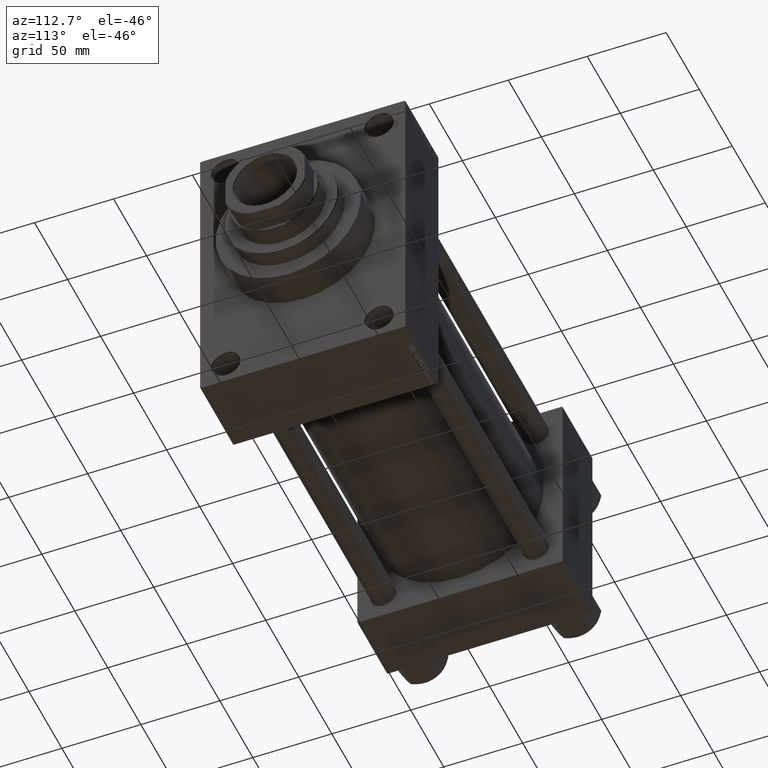
[diagram: clean part render]
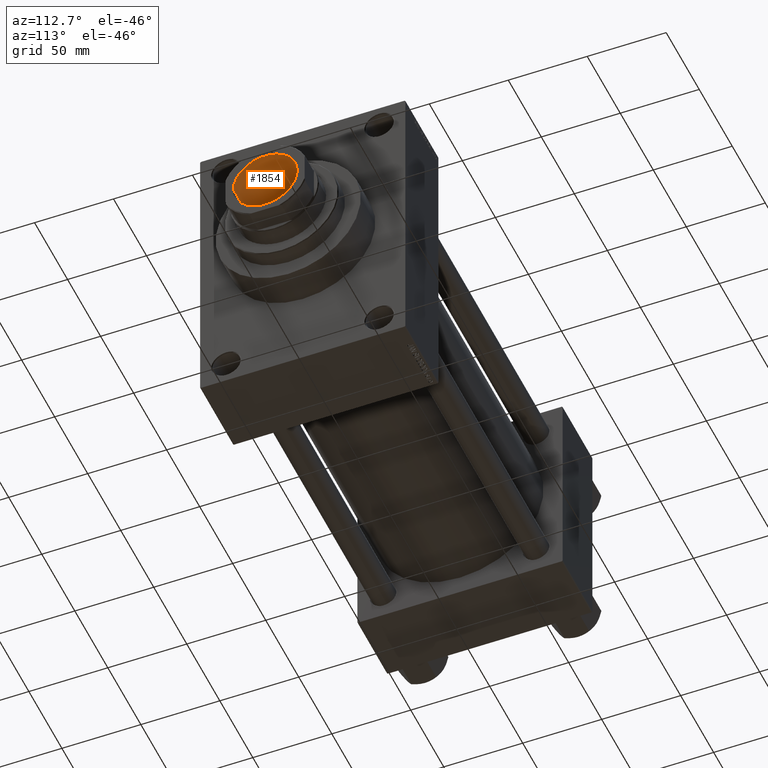
[diagram: same view with one face highlighted and labeled with its STEP entity id]
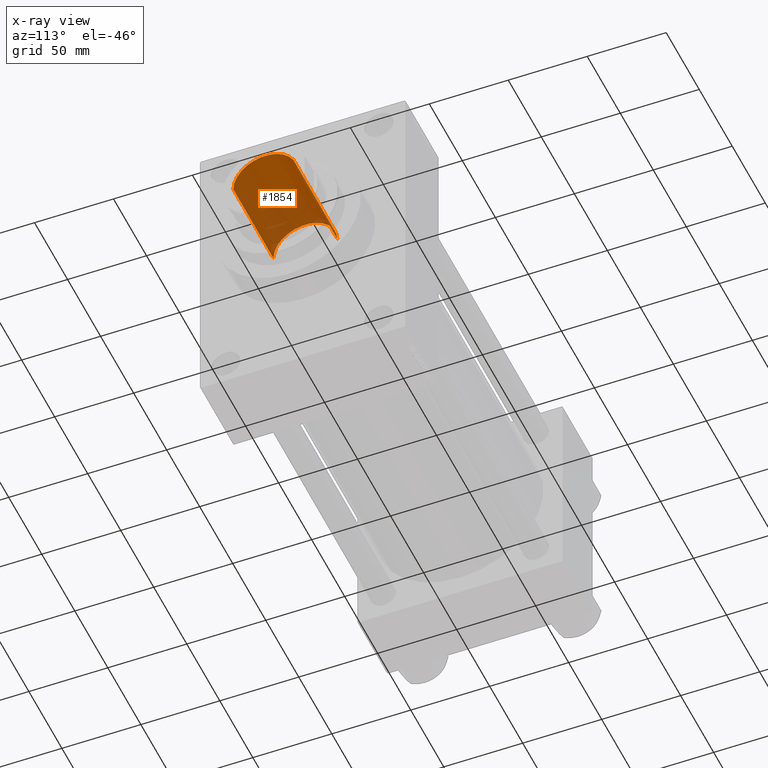
[diagram: x-ray of the same camera — body ghosted, the highlighted face saturated]
A machine part, auxiliary view. The second image highlights one B-rep face of the part: STEP entity #1854.
The next image is the same camera in x-ray: the body ghosted, the highlighted face saturated — about 35% of this face is hidden behind the body in this view.
In plain terms, the highlighted cylindrical surface (edge-blend (fillet) strip) has radius 20.25 mm, axis along (1, 0, 0).
Its self-contained STEP definition (entity closure, byte-faithful):
#648 = DIRECTION ( 'NONE',  ( 1.000000000000000000, 0.000000000000000000, 0.000000000000000000 ) ) ;
#1854 = ADVANCED_FACE ( 'NONE', ( #25726 ), #40485, .F. ) ;
#2057 = VECTOR ( 'NONE', #21897, 1000.000000000000000 ) ;
#3006 = DIRECTION ( 'NONE',  ( -0.000000000000000000, -0.000000000000000000, 1.000000000000000000 ) ) ;
#3049 = DIRECTION ( 'NONE',  ( 1.000000000000000000, 0.000000000000000000, 0.000000000000000000 ) ) ;
#3763 = DIRECTION ( 'NONE',  ( 0.000000000000000000, 0.000000000000000000, 1.000000000000000000 ) ) ;
#4270 = CARTESIAN_POINT ( 'NONE',  ( 0.000000000000000000, 0.000000000000000000, 295.0000000000000568 ) ) ;
#5881 = ORIENTED_EDGE ( 'NONE', *, *, #36671, .T. ) ;
#7620 = CARTESIAN_POINT ( 'NONE',  ( 0.000000000000000000, 0.000000000000000000, 294.7000000000000455 ) ) ;
#8716 = AXIS2_PLACEMENT_3D ( 'NONE', #4270, #30093, #648 ) ;
#10481 = CARTESIAN_POINT ( 'NONE',  ( -20.24999999999999289, 2.479909768273389511E-15, 295.0000000000000568 ) ) ;
#11833 = EDGE_CURVE ( 'NONE', #42551, #30858, #36623, .T. ) ;
#16569 = CARTESIAN_POINT ( 'NONE',  ( 20.24999999999998934, 0.000000000000000000, 234.0000000000000284 ) ) ;
#17951 = LINE ( 'NONE', #10481, #26720 ) ;
#18041 = LINE ( 'NONE', #32759, #2057 ) ;
#18382 = EDGE_CURVE ( 'NONE', #27227, #41632, #39288, .T. ) ;
#21897 = DIRECTION ( 'NONE',  ( -0.000000000000000000, -0.000000000000000000, 1.000000000000000000 ) ) ;
#22165 = EDGE_LOOP ( 'NONE', ( #40134, #5881, #33943, #47656 ) ) ;
#23722 = DIRECTION ( 'NONE',  ( -0.000000000000000000, -0.000000000000000000, 1.000000000000000000 ) ) ;
#24420 = CARTESIAN_POINT ( 'NONE',  ( 0.000000000000000000, 0.000000000000000000, 234.0000000000000284 ) ) ;
#25726 = FACE_OUTER_BOUND ( 'NONE', #22165, .T. ) ;
#26720 = VECTOR ( 'NONE', #3006, 1000.000000000000000 ) ;
#27227 = VERTEX_POINT ( 'NONE', #28353 ) ;
#27696 = AXIS2_PLACEMENT_3D ( 'NONE', #7620, #3763, #3049 ) ;
#28166 = AXIS2_PLACEMENT_3D ( 'NONE', #24420, #23722, #42806 ) ;
#28353 = CARTESIAN_POINT ( 'NONE',  ( -20.24999999999999289, 2.479909768273389511E-15, 294.7000000000000455 ) ) ;
#30093 = DIRECTION ( 'NONE',  ( -0.000000000000000000, -0.000000000000000000, 1.000000000000000000 ) ) ;
#30858 = VERTEX_POINT ( 'NONE', #16569 ) ;
#32759 = CARTESIAN_POINT ( 'NONE',  ( 20.24999999999999289, 0.000000000000000000, 295.0000000000000568 ) ) ;
#33943 = ORIENTED_EDGE ( 'NONE', *, *, #18382, .T. ) ;
#36623 = CIRCLE ( 'NONE', #28166, 20.24999999999998934 ) ;
#36671 = EDGE_CURVE ( 'NONE', #42551, #27227, #17951, .T. ) ;
#39288 = CIRCLE ( 'NONE', #27696, 20.24999999999999289 ) ;
#40134 = ORIENTED_EDGE ( 'NONE', *, *, #11833, .F. ) ;
#40485 = CYLINDRICAL_SURFACE ( 'NONE', #8716, 20.24999999999999289 ) ;
#40504 = EDGE_CURVE ( 'NONE', #30858, #41632, #18041, .T. ) ;
#41632 = VERTEX_POINT ( 'NONE', #44401 ) ;
#42551 = VERTEX_POINT ( 'NONE', #44412 ) ;
#42806 = DIRECTION ( 'NONE',  ( 1.000000000000000000, 0.000000000000000000, 0.000000000000000000 ) ) ;
#44401 = CARTESIAN_POINT ( 'NONE',  ( 20.24999999999999289, 0.000000000000000000, 294.7000000000000455 ) ) ;
#44412 = CARTESIAN_POINT ( 'NONE',  ( -20.24999999999998934, 2.479909768273389117E-15, 234.0000000000000284 ) ) ;
#47656 = ORIENTED_EDGE ( 'NONE', *, *, #40504, .F. ) ;